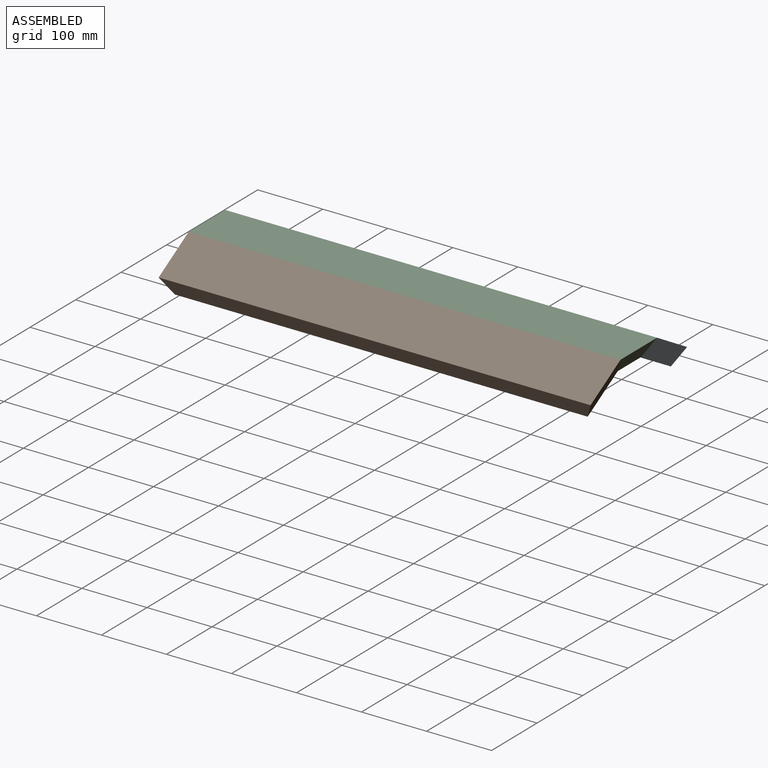
[diagram: assembled view]
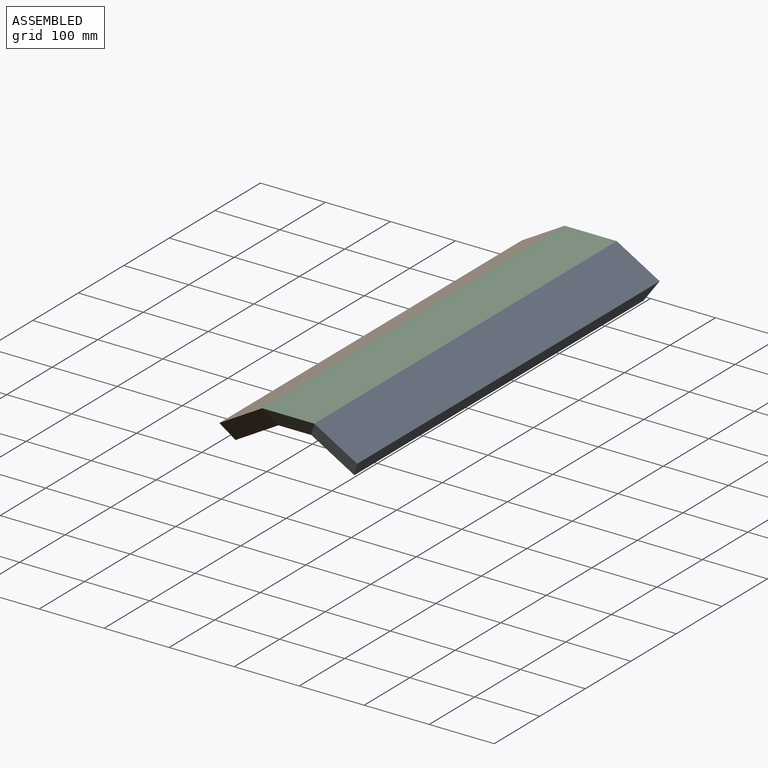
[diagram: assembled view, second angle]
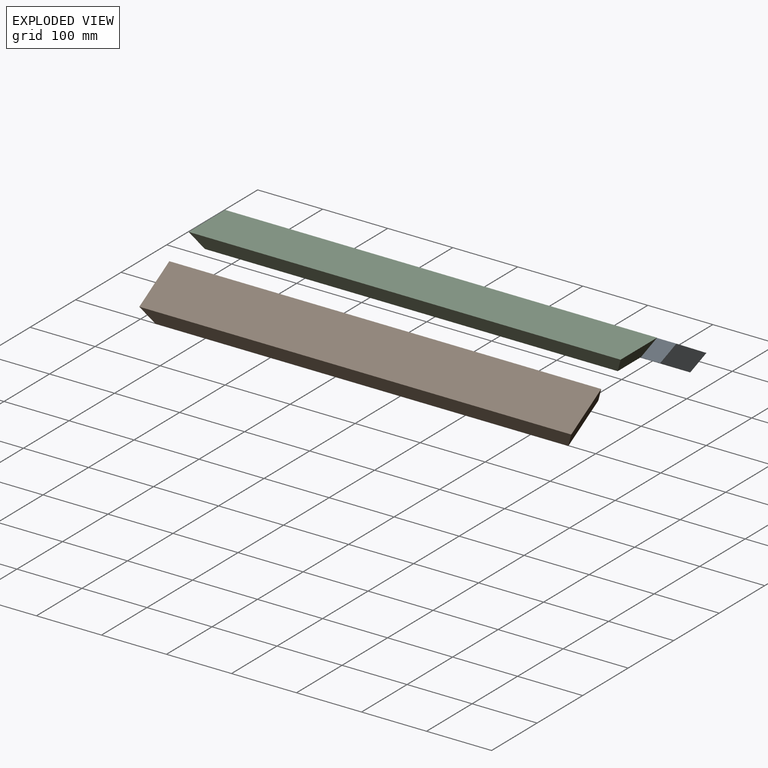
[diagram: exploded view]
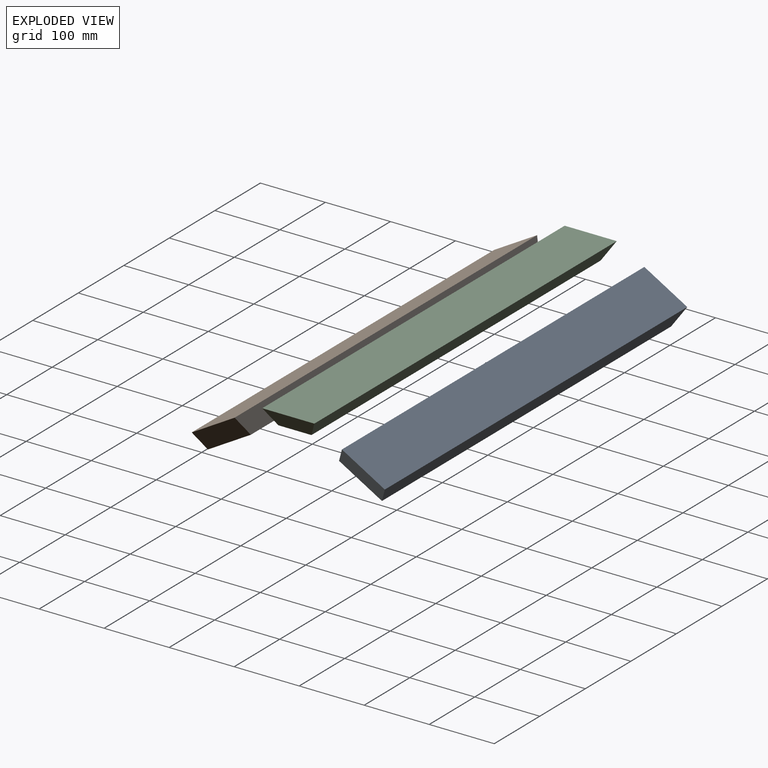
[diagram: exploded view, second angle]
ASSEMBLY  parts=3 mates=2
PART A: 18 faces, bbox 664.3x80.7x63.5 mm
  f0: plane 635x65.99mm, normal (0,-0.5,-0.87), area 21677.4mm2, adj f1,f3,f4,f5,f9,f10,f11,f12
  f1: plane 80.66x63.5mm, normal (-0.89,-0.22,-0.39), area 2498.7mm2, adj f0,f2,f4,f5
  f2: plane 664.33x65.99mm, normal (0,0.5,0.87), area 50621.9mm2, adj f1,f3,f4,f5
  f3: plane 80.66x63.5mm, normal (0.89,-0.22,-0.39), area 2498.7mm2, adj f0,f2,f4,f5
  f4: plane 664.33x25.4mm, normal (0,0.87,-0.5), area 19054.3mm2, adj f0,f1,f2,f3
  f5: plane 664.33x25.4mm, normal (0,-0.87,0.5), area 19054.3mm2, adj f0,f1,f2,f3
  f6: plane 558.8x2.2mm, normal (0,0.87,-0.5), area 1419.4mm2, adj f7,f13,f14,f15
  f7: plane 23.27x14.9mm, normal (-1,0,0), area 64.5mm2, adj f6,f8,f14,f16
  f8: plane 558.8x2.2mm, normal (0,-0.87,0.5), area 1419.4mm2, adj f7,f13,f14,f15
  f9: plane 47.21x36.06mm, normal (1,0,0), area 696.8mm2, adj f0,f10,f12,f14
  f10: plane 584.2x13.2mm, normal (0,-0.87,0.5), area 8903.2mm2, adj f0,f9,f11,f14
  f11: plane 47.21x36.06mm, normal (-1,0,0), area 696.8mm2, adj f0,f10,f12,f14
  f12: plane 584.2x13.2mm, normal (0,0.87,-0.5), area 8903.2mm2, adj f0,f9,f11,f14
  f13: plane 23.27x14.9mm, normal (1,0,0), area 64.5mm2, adj f6,f8,f14,f17
  f14: plane 584.2x39.59mm, normal (0,-0.5,-0.87), area 12516.1mm2, adj f6,f7,f8,f9,f10,f11,f12,f13
  f15: cylinder r=12.7mm len=558.8mm, axis (1,0,0), area 21926.9mm2, adj f6,f8,f16,f17
  f16: cylinder r=12.7mm len=28.35mm, axis (0,0.87,-0.5), area 322.6mm2, adj f7,f15
  f17: cylinder r=12.7mm len=28.35mm, axis (0,-0.87,0.5), area 322.6mm2, adj f13,f15
PART B: 18 faces, bbox 664.3x80.7x63.5 mm
  f0: plane 635x65.99mm, normal (0,0.5,-0.87), area 21677.4mm2, adj f1,f3,f4,f5,f9,f10,f11,f12
  f1: plane 80.66x63.5mm, normal (0.89,0.22,-0.39), area 2498.7mm2, adj f0,f2,f4,f5
  f2: plane 664.33x65.99mm, normal (0,-0.5,0.87), area 50621.9mm2, adj f1,f3,f4,f5
  f3: plane 80.66x63.5mm, normal (-0.89,0.22,-0.39), area 2498.7mm2, adj f0,f2,f4,f5
  f4: plane 664.33x25.4mm, normal (0,-0.87,-0.5), area 19054.3mm2, adj f0,f1,f2,f3
  f5: plane 664.33x25.4mm, normal (0,0.87,0.5), area 19054.3mm2, adj f0,f1,f2,f3
  f6: plane 558.8x2.2mm, normal (0,0.87,0.5), area 1419.4mm2, adj f7,f13,f14,f15
  f7: plane 23.27x14.9mm, normal (-1,0,0), area 64.5mm2, adj f6,f8,f14,f16
  f8: plane 558.8x2.2mm, normal (0,-0.87,-0.5), area 1419.4mm2, adj f7,f13,f14,f15
  f9: plane 47.21x36.06mm, normal (1,0,0), area 696.8mm2, adj f0,f10,f12,f14
  f10: plane 584.2x13.2mm, normal (0,-0.87,-0.5), area 8903.2mm2, adj f0,f9,f11,f14
  f11: plane 47.21x36.06mm, normal (-1,0,0), area 696.8mm2, adj f0,f10,f12,f14
  f12: plane 584.2x13.2mm, normal (0,0.87,0.5), area 8903.2mm2, adj f0,f9,f11,f14
  f13: plane 23.27x14.9mm, normal (1,0,0), area 64.5mm2, adj f6,f8,f14,f17
  f14: plane 584.2x39.59mm, normal (0,0.5,-0.87), area 12516.1mm2, adj f6,f7,f8,f9,f10,f11,f12,f13
  f15: cylinder r=12.7mm len=558.8mm, axis (-1,0,0), area 21926.9mm2, adj f6,f8,f16,f17
  f16: cylinder r=12.7mm len=28.35mm, axis (0,-0.87,-0.5), area 322.6mm2, adj f7,f15
  f17: cylinder r=12.7mm len=28.35mm, axis (0,0.87,0.5), area 322.6mm2, adj f13,f15
PART C: 6 faces, bbox 664.3x80.1x25.4 mm
  f0: plane 664.33x25.4mm, normal (0,0.87,-0.5), area 19054.3mm2, adj f1,f3,f4,f5
  f1: plane 80.13x25.4mm, normal (-0.87,0,-0.5), area 1920mm2, adj f0,f2,f4,f5
  f2: plane 664.33x25.4mm, normal (0,-0.87,-0.5), area 19054.3mm2, adj f1,f3,f4,f5
  f3: plane 80.13x25.4mm, normal (0.87,0,-0.5), area 1920mm2, adj f0,f2,f4,f5
  f4: plane 664.33x80.13mm, normal (0,0,1), area 53232.3mm2, adj f0,f1,f2,f3
  f5: plane 635x50.8mm, normal (0,0,-1), area 32258mm2, adj f0,f1,f2,f3
PLACE A t=(4.84,-0.9,-510.66)mm
PLACE B t=(4.84,-0.9,-510.66)mm
PLACE C t=(4.84,-0.9,-510.66)mm
MATE fastened B.f5 <-> C.f2  axis (0,0.87,0.5) through (4.84,-33.69,10.14)mm
MATE fastened A.f5 <-> C.f0  axis (0,-0.87,0.5) through (4.84,31.89,10.14)mm
